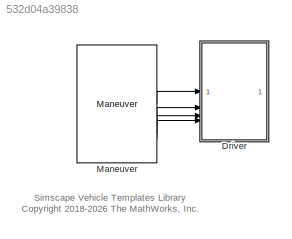
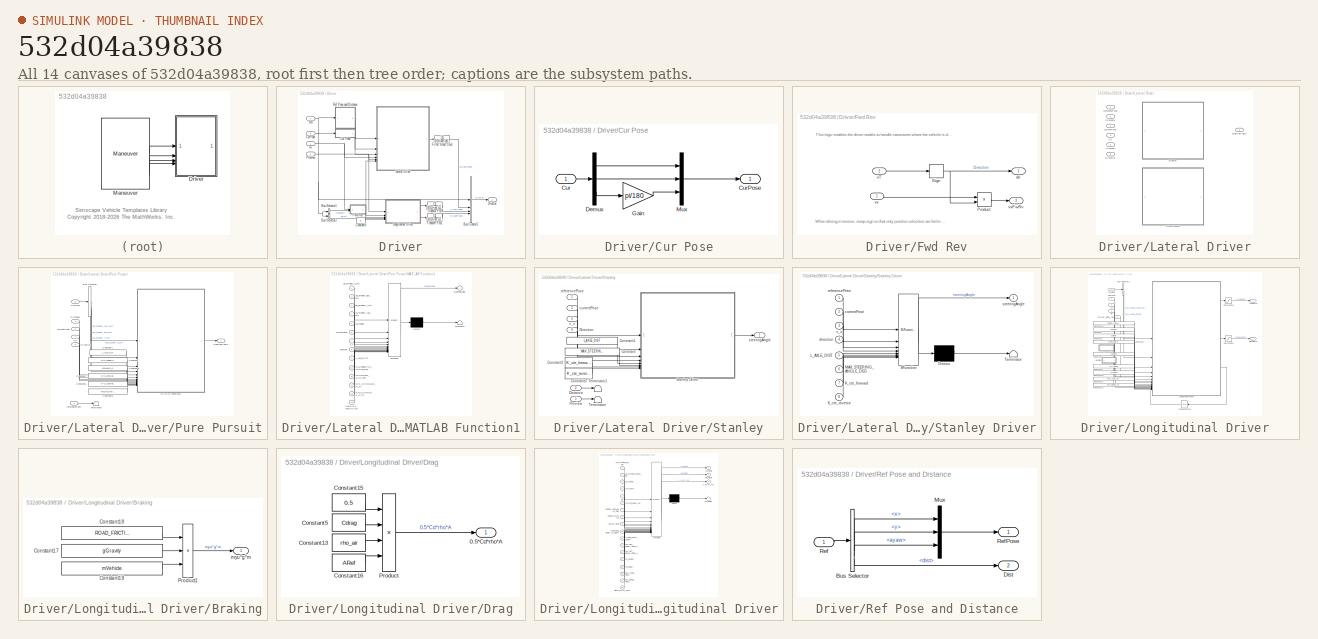
[diagram: thumbnail index - all 14 canvases of the model, root first then tree order]
MODEL slx_532d04a39838
KIND library
CONFIG SolverName = VariableStepAuto
BLOCK [SubSystem] Driver
BLOCK [BusCreator] Driver/Bus Creator5
  DisplayOption = bar
  InheritFromInputs = on
  Inputs = 4
BLOCK [BusSelector] Driver/Bus Selector1
  OutputSignals = vTarget
BLOCK [BusSelector] Driver/Bus Selector2
  OutputSignals = dist
BLOCK [Constant] Driver/Constant9
  Value = 0
BLOCK [SubSystem] Driver/Cur Pose
BLOCK [Inport] Driver/Cur Pose/Cur
BLOCK [Outport] Driver/Cur Pose/CurPose
  VectorParamsAs1DForOutWhenUnconnected = off
BLOCK [Demux] Driver/Cur Pose/Demux
  Outputs = 3
BLOCK [Gain] Driver/Cur Pose/Gain
  Gain = pi/180
BLOCK [Mux] Driver/Cur Pose/Mux
  DisplayOption = bar
  Inputs = 3
BLOCK [Inport] Driver/CurPose
  Port = 3
BLOCK [Outport] Driver/DrvBus
  VectorParamsAs1DForOutWhenUnconnected = off
BLOCK [TransferFcn] Driver/Filter Steer Cmd
  Denominator = [1/Driver.Lateral.fSteerCutoff.Value 1]
BLOCK [SubSystem] Driver/Fwd Rev
  NameLocation = top
BLOCK [Product] Driver/Fwd Rev/Product
BLOCK [Signum] Driver/Fwd Rev/Sign
  ZeroCross = off
BLOCK [Outport] Driver/Fwd Rev/dir
BLOCK [Inport] Driver/Fwd Rev/vT
  Port = 2
BLOCK [Inport] Driver/Fwd Rev/vx
BLOCK [Outport] Driver/Fwd Rev/vxFwRv
  Port = 2
BLOCK [SubSystem] Driver/Lateral Driver
  LabelModeActiveChoice = Stanley
  Variant = on
  VariantControl = Choice
  VariantControlMode = label
BLOCK [Inport] Driver/Lateral Driver/Direction
  Port = 6
BLOCK [Inport] Driver/Lateral Driver/Distance
  Port = 2
BLOCK [Inport] Driver/Lateral Driver/Preview
  Port = 5
BLOCK [SubSystem] Driver/Lateral Driver/Pure Pursuit
  VariantControl = Pure_Pursuit
BLOCK [BusSelector] Driver/Lateral Driver/Pure Pursuit/Bus Selector
  OutputSignals = pp_preview_x_pts,pp_preview_dist_pts,pp_preview_y_pts,pp_preview_yaw_pts
BLOCK [Constant] Driver/Lateral Driver/Pure Pursuit/Constant
  Value = MAX_STEERING_ANGLE_DEG
BLOCK [Constant] Driver/Lateral Driver/Pure Pursuit/Constant1
  Value = L_AXLE_DIST
BLOCK [Constant] Driver/Lateral Driver/Pure Pursuit/Constant5
  Value = LOOKAHEAD_GAIN_KPP
BLOCK [Constant] Driver/Lateral Driver/Pure Pursuit/Constant6
  Value = MAX_LOOKAHEAD_DIST
BLOCK [Constant] Driver/Lateral Driver/Pure Pursuit/Constant7
  Value = MIN_LOOKAHEAD_DIST
BLOCK [Constant] Driver/Lateral Driver/Pure Pursuit/Constant8
  Value = HEADING_WEIGHT_KH
BLOCK [Inport] Driver/Lateral Driver/Pure Pursuit/Direction
  Port = 6
BLOCK [Inport] Driver/Lateral Driver/Pure Pursuit/Distance
  Port = 2
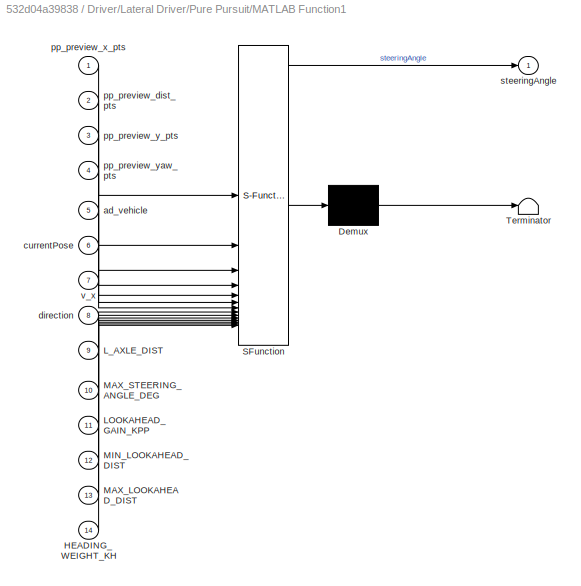
BLOCK [SubSystem] Driver/Lateral Driver/Pure Pursuit/MATLAB Function1
  ErrorFcn = Stateflow.Translate.translate
  PermitHierarchicalResolution = ExplicitOnly
  SFBlockType = MATLAB Function
  TreatAsAtomicUnit = on
BLOCK [Demux] Driver/Lateral Driver/Pure Pursuit/MATLAB Function1/ Demux 
  Outputs = 1
BLOCK [S-Function] Driver/Lateral Driver/Pure Pursuit/MATLAB Function1/ SFunction 
  EnableBusSupport = off
  FunctionName = sf_sfun
  PortCounts = [14 2]
  SFcnIsStateOwnerBlock = off
  SFunctionDeploymentMode = off
  Tag = Stateflow S-Function 7
BLOCK [Terminator] Driver/Lateral Driver/Pure Pursuit/MATLAB Function1/ Terminator 
BLOCK [Inport] Driver/Lateral Driver/Pure Pursuit/MATLAB Function1/HEADING_WEIGHT_KH
  Port = 14
BLOCK [Inport] Driver/Lateral Driver/Pure Pursuit/MATLAB Function1/LOOKAHEAD_GAIN_KPP
  Port = 11
BLOCK [Inport] Driver/Lateral Driver/Pure Pursuit/MATLAB Function1/L_AXLE_DIST
  Port = 9
BLOCK [Inport] Driver/Lateral Driver/Pure Pursuit/MATLAB Function1/MAX_LOOKAHEAD_DIST
  Port = 13
BLOCK [Inport] Driver/Lateral Driver/Pure Pursuit/MATLAB Function1/MAX_STEERING_ANGLE_DEG
  Port = 10
BLOCK [Inport] Driver/Lateral Driver/Pure Pursuit/MATLAB Function1/MIN_LOOKAHEAD_DIST
  Port = 12
BLOCK [Inport] Driver/Lateral Driver/Pure Pursuit/MATLAB Function1/ad_vehicle
  Port = 5
BLOCK [Inport] Driver/Lateral Driver/Pure Pursuit/MATLAB Function1/currentPose
  Port = 6
BLOCK [Inport] Driver/Lateral Driver/Pure Pursuit/MATLAB Function1/direction
  Port = 8
BLOCK [Inport] Driver/Lateral Driver/Pure Pursuit/MATLAB Function1/pp_preview_dist_pts
  Port = 2
BLOCK [Inport] Driver/Lateral Driver/Pure Pursuit/MATLAB Function1/pp_preview_x_pts
BLOCK [Inport] Driver/Lateral Driver/Pure Pursuit/MATLAB Function1/pp_preview_y_pts
  Port = 3
BLOCK [Inport] Driver/Lateral Driver/Pure Pursuit/MATLAB Function1/pp_preview_yaw_pts
  Port = 4
BLOCK [Outport] Driver/Lateral Driver/Pure Pursuit/MATLAB Function1/steeringAngle
BLOCK [Inport] Driver/Lateral Driver/Pure Pursuit/MATLAB Function1/v_x
  Port = 7
BLOCK [Inport] Driver/Lateral Driver/Pure Pursuit/Preview
  Port = 5
BLOCK [Terminator] Driver/Lateral Driver/Pure Pursuit/Terminator
BLOCK [Inport] Driver/Lateral Driver/Pure Pursuit/currentPose
  Port = 3
BLOCK [Inport] Driver/Lateral Driver/Pure Pursuit/referencePose
BLOCK [Outport] Driver/Lateral Driver/Pure Pursuit/steeringAngle
BLOCK [Inport] Driver/Lateral Driver/Pure Pursuit/v_x
  Port = 4
BLOCK [SubSystem] Driver/Lateral Driver/Stanley
  VariantControl = Stanley
BLOCK [Constant] Driver/Lateral Driver/Stanley/Constant
  Value = MAX_STEERING_ANGLE_DEG
BLOCK [Constant] Driver/Lateral Driver/Stanley/Constant1
  Value = L_AXLE_DIST
BLOCK [Constant] Driver/Lateral Driver/Stanley/Constant2
  Value = K_cte_forward
BLOCK [Constant] Driver/Lateral Driver/Stanley/Constant3
  Value = K_cte_reverse
BLOCK [Inport] Driver/Lateral Driver/Stanley/Direction
  Port = 6
BLOCK [Inport] Driver/Lateral Driver/Stanley/Distance
  Port = 2
BLOCK [Inport] Driver/Lateral Driver/Stanley/Preview
  Port = 5
BLOCK [SubSystem] Driver/Lateral Driver/Stanley/Stanley Driver
  ErrorFcn = Stateflow.Translate.translate
  PermitHierarchicalResolution = ExplicitOnly
  SFBlockType = MATLAB Function
  TreatAsAtomicUnit = on
BLOCK [Demux] Driver/Lateral Driver/Stanley/Stanley Driver/ Demux 
  Outputs = 1
BLOCK [S-Function] Driver/Lateral Driver/Stanley/Stanley Driver/ SFunction 
  EnableBusSupport = off
  FunctionName = sf_sfun
  PortCounts = [8 2]
  SFcnIsStateOwnerBlock = off
  SFunctionDeploymentMode = off
  Tag = Stateflow S-Function 4
BLOCK [Terminator] Driver/Lateral Driver/Stanley/Stanley Driver/ Terminator 
BLOCK [Inport] Driver/Lateral Driver/Stanley/Stanley Driver/K_cte_forward
  Port = 7
BLOCK [Inport] Driver/Lateral Driver/Stanley/Stanley Driver/K_cte_reverse
  Port = 8
BLOCK [Inport] Driver/Lateral Driver/Stanley/Stanley Driver/L_AXLE_DIST
  Port = 5
BLOCK [Inport] Driver/Lateral Driver/Stanley/Stanley Driver/MAX_STEERING_ANGLE_DEG
  Port = 6
BLOCK [Inport] Driver/Lateral Driver/Stanley/Stanley Driver/currentPose
  Port = 2
BLOCK [Inport] Driver/Lateral Driver/Stanley/Stanley Driver/direction
  Port = 4
BLOCK [Inport] Driver/Lateral Driver/Stanley/Stanley Driver/referencePose
BLOCK [Outport] Driver/Lateral Driver/Stanley/Stanley Driver/steeringAngle
BLOCK [Inport] Driver/Lateral Driver/Stanley/Stanley Driver/v_x
  Port = 3
BLOCK [Terminator] Driver/Lateral Driver/Stanley/Terminator
BLOCK [Terminator] Driver/Lateral Driver/Stanley/Terminator1
BLOCK [Inport] Driver/Lateral Driver/Stanley/currentPose
  Port = 3
BLOCK [Inport] Driver/Lateral Driver/Stanley/referencePose
BLOCK [Outport] Driver/Lateral Driver/Stanley/steeringAngle
BLOCK [Inport] Driver/Lateral Driver/Stanley/v_x
  Port = 4
BLOCK [Inport] Driver/Lateral Driver/currentPose
  Port = 3
BLOCK [Inport] Driver/Lateral Driver/referencePose
BLOCK [Outport] Driver/Lateral Driver/steeringAngle
BLOCK [Inport] Driver/Lateral Driver/v_x
  Port = 4
BLOCK [SubSystem] Driver/Longitudinal Driver
BLOCK [Outport] Driver/Longitudinal Driver/AccelCmd
BLOCK [SubSystem] Driver/Longitudinal Driver/Braking
  NameLocation = left
BLOCK [Constant] Driver/Longitudinal Driver/Braking/Constant17
  Value = gGravity
BLOCK [Constant] Driver/Longitudinal Driver/Braking/Constant18
  Value = ROAD_FRICTION_COEFF
BLOCK [Constant] Driver/Longitudinal Driver/Braking/Constant19
  Value = mVehicle
BLOCK [Product] Driver/Longitudinal Driver/Braking/Product1
  Inputs = 3
BLOCK [Outport] Driver/Longitudinal Driver/Braking/myu*g*m
BLOCK [BusSelector] Driver/Longitudinal Driver/Bus Selector3
  OutputSignals = pp_preview_dist_pts,pp_preview_speed_pts
BLOCK [Constant] Driver/Longitudinal Driver/Constant1
  Value = mVehicle
BLOCK [Constant] Driver/Longitudinal Driver/Constant10
  Value = KI_SPEED
BLOCK [Constant] Driver/Longitudinal Driver/Constant11
  Value = MAX_ACCEL_MPS2
BLOCK [Constant] Driver/Longitudinal Driver/Constant12
  Value = MAX_DECEL_MPS2
BLOCK [Constant] Driver/Longitudinal Driver/Constant14
  Value = SPEED_LOOKAHEAD_TIME
BLOCK [Constant] Driver/Longitudinal Driver/Constant3
  Value = gGravity
BLOCK [Constant] Driver/Longitudinal Driver/Constant4
  Value = C_ROLLING_RESISTANCE_COEFF
BLOCK [Constant] Driver/Longitudinal Driver/Constant6
  Value = FTractive
BLOCK [Constant] Driver/Longitudinal Driver/Constant8
  Value = KP_SPEED
BLOCK [Outport] Driver/Longitudinal Driver/DecelCmd
  Port = 2
BLOCK [Inport] Driver/Longitudinal Driver/Distance
  Port = 4
BLOCK [SubSystem] Driver/Longitudinal Driver/Drag
  NameLocation = left
BLOCK [Outport] Driver/Longitudinal Driver/Drag/0.5*Cd*rho*A
BLOCK [Constant] Driver/Longitudinal Driver/Drag/Constant13
  Value = rho_air
BLOCK [Constant] Driver/Longitudinal Driver/Drag/Constant15
  Value = 0.5
BLOCK [Constant] Driver/Longitudinal Driver/Drag/Constant16
  Value = ARef
BLOCK [Constant] Driver/Longitudinal Driver/Drag/Constant5
  Value = Cdrag
BLOCK [Product] Driver/Longitudinal Driver/Drag/Product
  Inputs = 4
BLOCK [Integrator] Driver/Longitudinal Driver/Integral Error
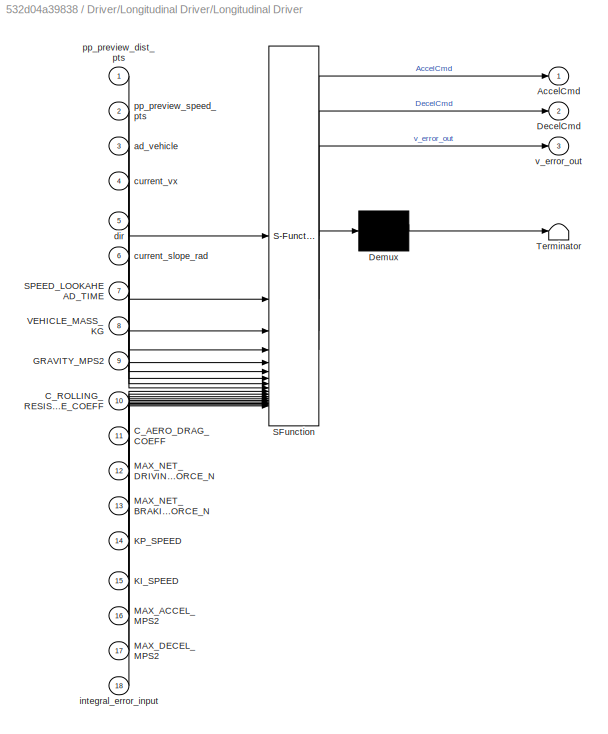
BLOCK [SubSystem] Driver/Longitudinal Driver/Longitudinal Driver
  ErrorFcn = Stateflow.Translate.translate
  PermitHierarchicalResolution = ExplicitOnly
  SFBlockType = MATLAB Function
  TreatAsAtomicUnit = on
BLOCK [Demux] Driver/Longitudinal Driver/Longitudinal Driver/ Demux 
  Outputs = 1
BLOCK [S-Function] Driver/Longitudinal Driver/Longitudinal Driver/ SFunction 
  EnableBusSupport = off
  FunctionName = sf_sfun
  PortCounts = [18 4]
  SFcnIsStateOwnerBlock = off
  SFunctionDeploymentMode = off
  Tag = Stateflow S-Function 5
BLOCK [Terminator] Driver/Longitudinal Driver/Longitudinal Driver/ Terminator 
BLOCK [Outport] Driver/Longitudinal Driver/Longitudinal Driver/AccelCmd
BLOCK [Inport] Driver/Longitudinal Driver/Longitudinal Driver/C_AERO_DRAG_COEFF
  Port = 11
BLOCK [Inport] Driver/Longitudinal Driver/Longitudinal Driver/C_ROLLING_RESISTANCE_COEFF
  Port = 10
BLOCK [Outport] Driver/Longitudinal Driver/Longitudinal Driver/DecelCmd
  Port = 2
BLOCK [Inport] Driver/Longitudinal Driver/Longitudinal Driver/GRAVITY_MPS2
  Port = 9
BLOCK [Inport] Driver/Longitudinal Driver/Longitudinal Driver/KI_SPEED
  Port = 15
BLOCK [Inport] Driver/Longitudinal Driver/Longitudinal Driver/KP_SPEED
  Port = 14
BLOCK [Inport] Driver/Longitudinal Driver/Longitudinal Driver/MAX_ACCEL_MPS2
  Port = 16
BLOCK [Inport] Driver/Longitudinal Driver/Longitudinal Driver/MAX_DECEL_MPS2
  Port = 17
BLOCK [Inport] Driver/Longitudinal Driver/Longitudinal Driver/MAX_NET_BRAKING_FORCE_N
  Port = 13
BLOCK [Inport] Driver/Longitudinal Driver/Longitudinal Driver/MAX_NET_DRIVING_FORCE_N
  Port = 12
BLOCK [Inport] Driver/Longitudinal Driver/Longitudinal Driver/SPEED_LOOKAHEAD_TIME
  Port = 7
BLOCK [Inport] Driver/Longitudinal Driver/Longitudinal Driver/VEHICLE_MASS_KG
  Port = 8
BLOCK [Inport] Driver/Longitudinal Driver/Longitudinal Driver/ad_vehicle
  Port = 3
BLOCK [Inport] Driver/Longitudinal Driver/Longitudinal Driver/current_slope_rad
  Port = 6
BLOCK [Inport] Driver/Longitudinal Driver/Longitudinal Driver/current_vx
  Port = 4
BLOCK [Inport] Driver/Longitudinal Driver/Longitudinal Driver/dir
  Port = 5
BLOCK [Inport] Driver/Longitudinal Driver/Longitudinal Driver/integral_error_input
  Port = 18
BLOCK [Inport] Driver/Longitudinal Driver/Longitudinal Driver/pp_preview_dist_pts
BLOCK [Inport] Driver/Longitudinal Driver/Longitudinal Driver/pp_preview_speed_pts
  Port = 2
BLOCK [Outport] Driver/Longitudinal Driver/Longitudinal Driver/v_error_out
  Port = 3
BLOCK [Inport] Driver/Longitudinal Driver/Preview
BLOCK [Saturate] Driver/Longitudinal Driver/Saturation1
  LowerLimit = 0
  UpperLimit = 1
  ZeroCross = off
BLOCK [Saturate] Driver/Longitudinal Driver/Saturation2
  LowerLimit = 0
  UpperLimit = 1
  ZeroCross = off
BLOCK [Inport] Driver/Longitudinal Driver/current_slope_rad
  NameLocation = left
  Port = 5
BLOCK [Inport] Driver/Longitudinal Driver/dir
  Port = 2
BLOCK [Inport] Driver/Longitudinal Driver/vx
  Port = 3
BLOCK [Inport] Driver/Preview
  Port = 4
BLOCK [Inport] Driver/Ref
  Port = 2
BLOCK [SubSystem] Driver/Ref Pose and Distance
  NameLocation = top
BLOCK [BusSelector] Driver/Ref Pose and Distance/Bus Selector
  OutputSignals = x,y,ayaw,dist
BLOCK [Outport] Driver/Ref Pose and Distance/Dist
  Port = 2
  VectorParamsAs1DForOutWhenUnconnected = off
BLOCK [Mux] Driver/Ref Pose and Distance/Mux
  DisplayOption = bar
  Inputs = 3
BLOCK [Inport] Driver/Ref Pose and Distance/Ref
BLOCK [Outport] Driver/Ref Pose and Distance/RefPose
  VectorParamsAs1DForOutWhenUnconnected = off
BLOCK [TransferFcn] Driver/Transfer Fcn
  Denominator = [1/(Driver.Long.fAccelCutoff.Value) 1]
  NameLocation = top
BLOCK [TransferFcn] Driver/Transfer Fcn1
  Denominator = [1/(Driver.Long.fBrakeCutoff.Value) 1]
  NameLocation = top
BLOCK [Inport] Driver/vx
BLOCK [Reference] Maneuver  REF=Maneuver_Get_Pose/Maneuver
  SourceBlock = Maneuver_Get_Pose/Maneuver
  SourceType = Maneuver Follow Trajectory
ANNOTATION (root): Simscape Vehicle Templates Library <copyright redacted>
ANNOTATION Driver/Fwd Rev: This logic enables the driver models to handle maneuvers where the vehicle is driven in reverse.
ANNOTATION Driver/Fwd Rev: When driving in reverse, swap sign so that only positive velocities are fed to Longitudinal Driver model.
LINE Driver/Bus Creator5:1 -> Driver/DrvBus:1
LINE Driver/Bus Selector1:1 -> Driver/Fwd Rev:2
LINE Driver/Bus Selector2:1 -> Driver/Longitudinal Driver:4
LINE Driver/Constant9:1 -> Driver/Longitudinal Driver:5
LINE Driver/Cur Pose/Cur:1 -> Driver/Cur Pose/Demux:1
LINE Driver/Cur Pose/Demux:1 -> Driver/Cur Pose/Mux:1
LINE Driver/Cur Pose/Demux:2 -> Driver/Cur Pose/Mux:2
LINE Driver/Cur Pose/Demux:3 -> Driver/Cur Pose/Gain:1
LINE Driver/Cur Pose/Gain:1 -> Driver/Cur Pose/Mux:3
LINE Driver/Cur Pose/Mux:1 -> Driver/Cur Pose/CurPose:1
LINE Driver/Cur Pose:1 -> Driver/Lateral Driver:3
LINE Driver/CurPose:1 -> Driver/Cur Pose:1
LINE Driver/Filter Steer Cmd:1 -> Driver/Bus Creator5:2
LINE Driver/Fwd Rev/Product:1 -> Driver/Fwd Rev/vxFwRv:1
NET Driver/Fwd Rev/Sign:1 -> Driver/Fwd Rev/Product:2, Driver/Fwd Rev/dir:1
LINE Driver/Fwd Rev/vT:1 -> Driver/Fwd Rev/Sign:1
LINE Driver/Fwd Rev/vx:1 -> Driver/Fwd Rev/Product:1
NET Driver/Fwd Rev:1 -> Driver/Lateral Driver:6, Driver/Longitudinal Driver:2
LINE Driver/Fwd Rev:2 -> Driver/Longitudinal Driver:3
LINE Driver/Lateral Driver/Pure Pursuit/Bus Selector:1 -> Driver/Lateral Driver/Pure Pursuit/MATLAB Function1:1
LINE Driver/Lateral Driver/Pure Pursuit/Bus Selector:2 -> Driver/Lateral Driver/Pure Pursuit/MATLAB Function1:2
LINE Driver/Lateral Driver/Pure Pursuit/Bus Selector:3 -> Driver/Lateral Driver/Pure Pursuit/MATLAB Function1:3
LINE Driver/Lateral Driver/Pure Pursuit/Bus Selector:4 -> Driver/Lateral Driver/Pure Pursuit/MATLAB Function1:4
LINE Driver/Lateral Driver/Pure Pursuit/Constant1:1 -> Driver/Lateral Driver/Pure Pursuit/MATLAB Function1:9
LINE Driver/Lateral Driver/Pure Pursuit/Constant5:1 -> Driver/Lateral Driver/Pure Pursuit/MATLAB Function1:11
LINE Driver/Lateral Driver/Pure Pursuit/Constant6:1 -> Driver/Lateral Driver/Pure Pursuit/MATLAB Function1:13
LINE Driver/Lateral Driver/Pure Pursuit/Constant7:1 -> Driver/Lateral Driver/Pure Pursuit/MATLAB Function1:12
LINE Driver/Lateral Driver/Pure Pursuit/Constant8:1 -> Driver/Lateral Driver/Pure Pursuit/MATLAB Function1:14
LINE Driver/Lateral Driver/Pure Pursuit/Constant:1 -> Driver/Lateral Driver/Pure Pursuit/MATLAB Function1:10
LINE Driver/Lateral Driver/Pure Pursuit/Direction:1 -> Driver/Lateral Driver/Pure Pursuit/MATLAB Function1:8
LINE Driver/Lateral Driver/Pure Pursuit/Distance:1 -> Driver/Lateral Driver/Pure Pursuit/MATLAB Function1:5
LINE Driver/Lateral Driver/Pure Pursuit/MATLAB Function1:1 -> Driver/Lateral Driver/Pure Pursuit/steeringAngle:1
LINE Driver/Lateral Driver/Pure Pursuit/Preview:1 -> Driver/Lateral Driver/Pure Pursuit/Bus Selector:1
LINE Driver/Lateral Driver/Pure Pursuit/currentPose:1 -> Driver/Lateral Driver/Pure Pursuit/MATLAB Function1:6
LINE Driver/Lateral Driver/Pure Pursuit/referencePose:1 -> Driver/Lateral Driver/Pure Pursuit/Terminator:1
LINE Driver/Lateral Driver/Pure Pursuit/v_x:1 -> Driver/Lateral Driver/Pure Pursuit/MATLAB Function1:7
LINE Driver/Lateral Driver/Stanley/Constant1:1 -> Driver/Lateral Driver/Stanley/Stanley Driver:5
LINE Driver/Lateral Driver/Stanley/Constant2:1 -> Driver/Lateral Driver/Stanley/Stanley Driver:7
LINE Driver/Lateral Driver/Stanley/Constant3:1 -> Driver/Lateral Driver/Stanley/Stanley Driver:8
LINE Driver/Lateral Driver/Stanley/Constant:1 -> Driver/Lateral Driver/Stanley/Stanley Driver:6
LINE Driver/Lateral Driver/Stanley/Direction:1 -> Driver/Lateral Driver/Stanley/Stanley Driver:4
LINE Driver/Lateral Driver/Stanley/Distance:1 -> Driver/Lateral Driver/Stanley/Terminator1:1
LINE Driver/Lateral Driver/Stanley/Preview:1 -> Driver/Lateral Driver/Stanley/Terminator:1
LINE Driver/Lateral Driver/Stanley/Stanley Driver:1 -> Driver/Lateral Driver/Stanley/steeringAngle:1
LINE Driver/Lateral Driver/Stanley/currentPose:1 -> Driver/Lateral Driver/Stanley/Stanley Driver:2
LINE Driver/Lateral Driver/Stanley/referencePose:1 -> Driver/Lateral Driver/Stanley/Stanley Driver:1
LINE Driver/Lateral Driver/Stanley/v_x:1 -> Driver/Lateral Driver/Stanley/Stanley Driver:3
LINE Driver/Lateral Driver:1 -> Driver/Filter Steer Cmd:1
LINE Driver/Longitudinal Driver/Braking/Constant17:1 -> Driver/Longitudinal Driver/Braking/Product1:2
LINE Driver/Longitudinal Driver/Braking/Constant18:1 -> Driver/Longitudinal Driver/Braking/Product1:1
LINE Driver/Longitudinal Driver/Braking/Constant19:1 -> Driver/Longitudinal Driver/Braking/Product1:3
LINE Driver/Longitudinal Driver/Braking/Product1:1 -> Driver/Longitudinal Driver/Braking/myu*g*m:1
LINE Driver/Longitudinal Driver/Braking:1 -> Driver/Longitudinal Driver/Longitudinal Driver:13
LINE Driver/Longitudinal Driver/Bus Selector3:1 -> Driver/Longitudinal Driver/Longitudinal Driver:1
LINE Driver/Longitudinal Driver/Bus Selector3:2 -> Driver/Longitudinal Driver/Longitudinal Driver:2
LINE Driver/Longitudinal Driver/Constant10:1 -> Driver/Longitudinal Driver/Longitudinal Driver:15
LINE Driver/Longitudinal Driver/Constant11:1 -> Driver/Longitudinal Driver/Longitudinal Driver:16
LINE Driver/Longitudinal Driver/Constant12:1 -> Driver/Longitudinal Driver/Longitudinal Driver:17
LINE Driver/Longitudinal Driver/Constant14:1 -> Driver/Longitudinal Driver/Longitudinal Driver:7
LINE Driver/Longitudinal Driver/Constant1:1 -> Driver/Longitudinal Driver/Longitudinal Driver:8
LINE Driver/Longitudinal Driver/Constant3:1 -> Driver/Longitudinal Driver/Longitudinal Driver:9
LINE Driver/Longitudinal Driver/Constant4:1 -> Driver/Longitudinal Driver/Longitudinal Driver:10
LINE Driver/Longitudinal Driver/Constant6:1 -> Driver/Longitudinal Driver/Longitudinal Driver:12
LINE Driver/Longitudinal Driver/Constant8:1 -> Driver/Longitudinal Driver/Longitudinal Driver:14
LINE Driver/Longitudinal Driver/Distance:1 -> Driver/Longitudinal Driver/Longitudinal Driver:3
LINE Driver/Longitudinal Driver/Drag/Constant13:1 -> Driver/Longitudinal Driver/Drag/Product:3
LINE Driver/Longitudinal Driver/Drag/Constant15:1 -> Driver/Longitudinal Driver/Drag/Product:1
LINE Driver/Longitudinal Driver/Drag/Constant16:1 -> Driver/Longitudinal Driver/Drag/Product:4
LINE Driver/Longitudinal Driver/Drag/Constant5:1 -> Driver/Longitudinal Driver/Drag/Product:2
LINE Driver/Longitudinal Driver/Drag/Product:1 -> Driver/Longitudinal Driver/Drag/0.5*Cd*rho*A:1
LINE Driver/Longitudinal Driver/Drag:1 -> Driver/Longitudinal Driver/Longitudinal Driver:11
LINE Driver/Longitudinal Driver/Integral Error:1 -> Driver/Longitudinal Driver/Longitudinal Driver:18
LINE Driver/Longitudinal Driver/Longitudinal Driver:1 -> Driver/Longitudinal Driver/Saturation1:1
LINE Driver/Longitudinal Driver/Longitudinal Driver:2 -> Driver/Longitudinal Driver/Saturation2:1
LINE Driver/Longitudinal Driver/Longitudinal Driver:3 -> Driver/Longitudinal Driver/Integral Error:1
LINE Driver/Longitudinal Driver/Preview:1 -> Driver/Longitudinal Driver/Bus Selector3:1
LINE Driver/Longitudinal Driver/Saturation1:1 -> Driver/Longitudinal Driver/AccelCmd:1
LINE Driver/Longitudinal Driver/Saturation2:1 -> Driver/Longitudinal Driver/DecelCmd:1
LINE Driver/Longitudinal Driver/current_slope_rad:1 -> Driver/Longitudinal Driver/Longitudinal Driver:6
LINE Driver/Longitudinal Driver/dir:1 -> Driver/Longitudinal Driver/Longitudinal Driver:5
LINE Driver/Longitudinal Driver/vx:1 -> Driver/Longitudinal Driver/Longitudinal Driver:4
LINE Driver/Longitudinal Driver:1 -> Driver/Transfer Fcn:1
LINE Driver/Longitudinal Driver:2 -> Driver/Transfer Fcn1:1
NET Driver/Preview:1 -> Driver/Lateral Driver:5, Driver/Longitudinal Driver:1
LINE Driver/Ref Pose and Distance/Bus Selector:1 -> Driver/Ref Pose and Distance/Mux:1
LINE Driver/Ref Pose and Distance/Bus Selector:2 -> Driver/Ref Pose and Distance/Mux:2
LINE Driver/Ref Pose and Distance/Bus Selector:3 -> Driver/Ref Pose and Distance/Mux:3
LINE Driver/Ref Pose and Distance/Bus Selector:4 -> Driver/Ref Pose and Distance/Dist:1
LINE Driver/Ref Pose and Distance/Mux:1 -> Driver/Ref Pose and Distance/RefPose:1
LINE Driver/Ref Pose and Distance/Ref:1 -> Driver/Ref Pose and Distance/Bus Selector:1
LINE Driver/Ref Pose and Distance:1 -> Driver/Lateral Driver:1
LINE Driver/Ref Pose and Distance:2 -> Driver/Lateral Driver:2
NET Driver/Ref:1 -> Driver/Bus Creator5:1, Driver/Bus Selector1:1, Driver/Bus Selector2:1, Driver/Ref Pose and Distance:1
LINE Driver/Transfer Fcn1:1 -> Driver/Bus Creator5:4
LINE Driver/Transfer Fcn:1 -> Driver/Bus Creator5:3
NET Driver/vx:1 -> Driver/Fwd Rev:1, Driver/Lateral Driver:4
LINE Maneuver:1 -> Driver:1
LINE Maneuver:2 -> Driver:2
LINE Maneuver:3 -> Driver:3
LINE Maneuver:4 -> Driver:4
note: NET lines group one-source signal fan-out (src -> all destinations, sorted); 1:1 wires keep LINE
CHART Driver/Lateral Driver/Stanley/Stanley Driver states=1 transitions=1
  STATE_LABEL 'eML_blk_kernel()'
  STATE_LABEL 'SCRIPT:\nfunction steeringAngle = lateralDrivingController(referencePose, currentPose, v_x, direction, L_AXLE_DIST, MAX_STEERING_ANGLE_DEG, K_cte_forward, K_cte_reverse)\n%#codegen % Directive for MATLAB Coder\n\n% lateralDrivingController Implements Stanley method for lateral control.\n% Supports forward and reverse driving.\n% Based on Hoffmann et al. (2007), "Autonomous Automobile Trajectory Tracking...<+3608ch>'
CHART Driver/Longitudinal Driver/Longitudinal Driver states=1 transitions=1
  STATE_LABEL 'eML_blk_kernel()'
  STATE_LABEL "SCRIPT:\nfunction [AccelCmd, DecelCmd, v_error_out] = longitudinalSpeedController(...\n    pp_preview_dist_pts, ...     % Preview segment: cumulative distances (m)\n    pp_preview_speed_pts, ...    % Preview segment: target speeds (m/s)\n    ad_vehicle, ...              % Current distance of vehicle along path (m)\n    current_vx, ...              % Vehicle's current longitudinal velocity (m/s)\n    dir...<+3608ch>"
CHART Driver/Lateral Driver/Pure Pursuit/MATLAB Function1 states=1 transitions=1
  STATE_LABEL 'eML_blk_kernel()'
  STATE_LABEL "SCRIPT:\nfunction steeringAngle = purePursuitLateralController( ...\n    pp_preview_x_pts, pp_preview_dist_pts, pp_preview_y_pts, pp_preview_yaw_pts,  ... % Preview segment\n    ad_vehicle,...           % Current distance of vehicle along path (from getPoseCurRef)\n    currentPose,...          % Vehicle's current pose: [x_curr, y_curr, yaw_curr_rad]\n    v_x,...                  % Vehicle's current lon...<+3608ch>"
CHART  states=0 transitions=0
CHART  states=0 transitions=0
CHART  states=0 transitions=0
